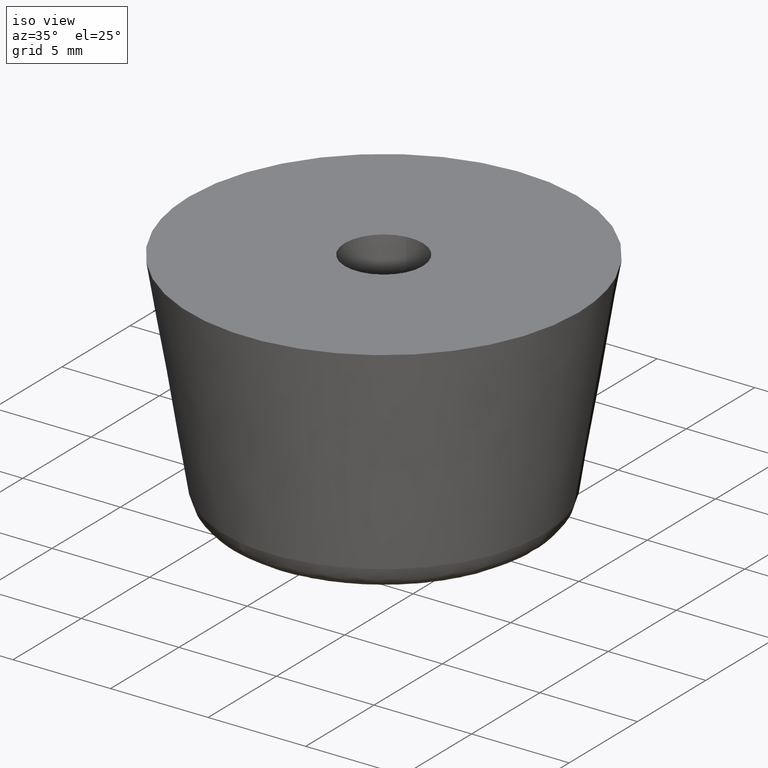
[diagram: clean part render]
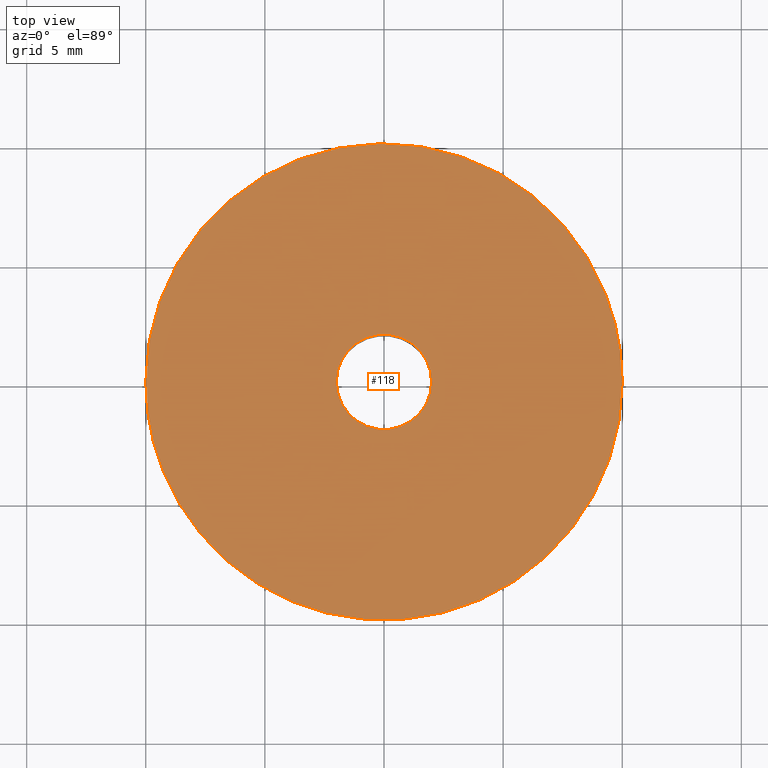
[diagram: tour spotlight — one face highlighted and labeled with its STEP entity id]
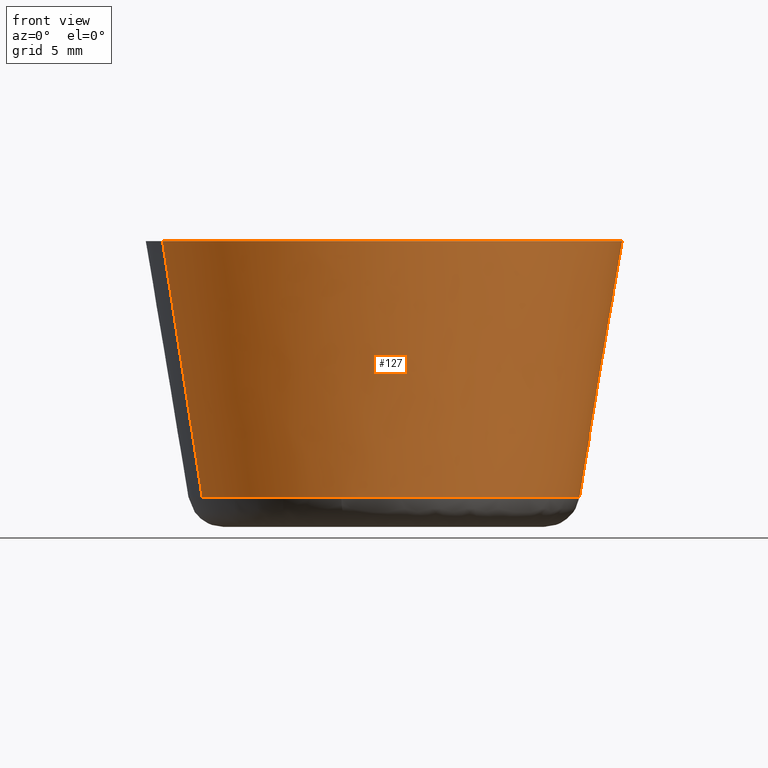
[diagram: tour spotlight — one face highlighted and labeled with its STEP entity id]
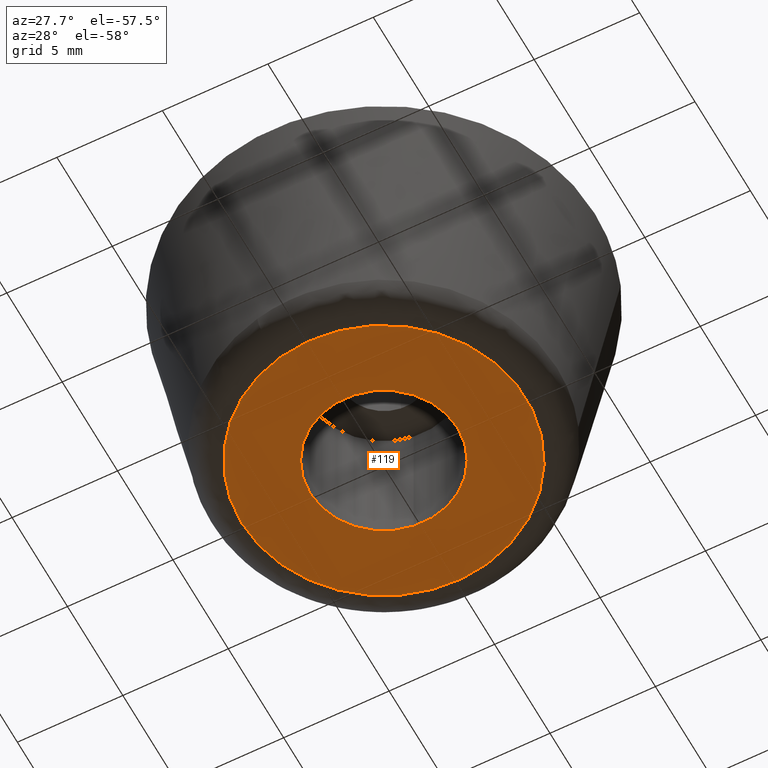
[diagram: tour spotlight — one face highlighted and labeled with its STEP entity id]
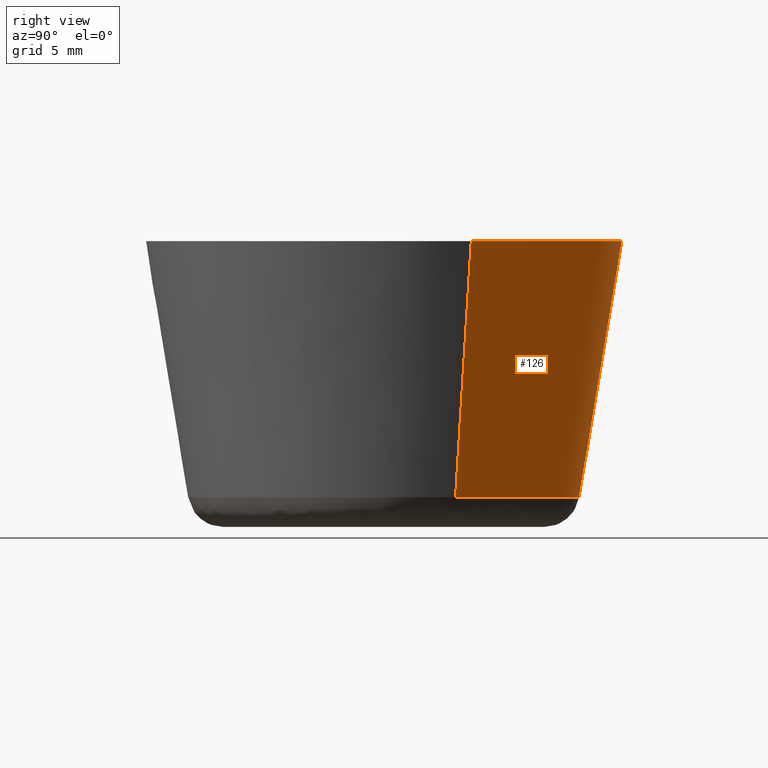
[diagram: tour spotlight — one face highlighted and labeled with its STEP entity id]
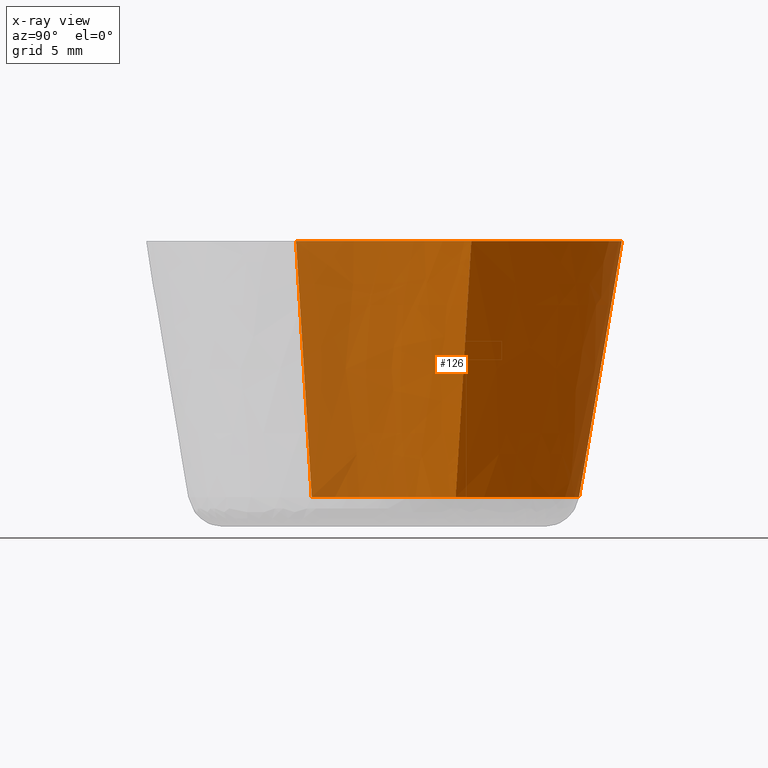
[diagram: x-ray of the same camera — body ghosted, this tour face saturated]
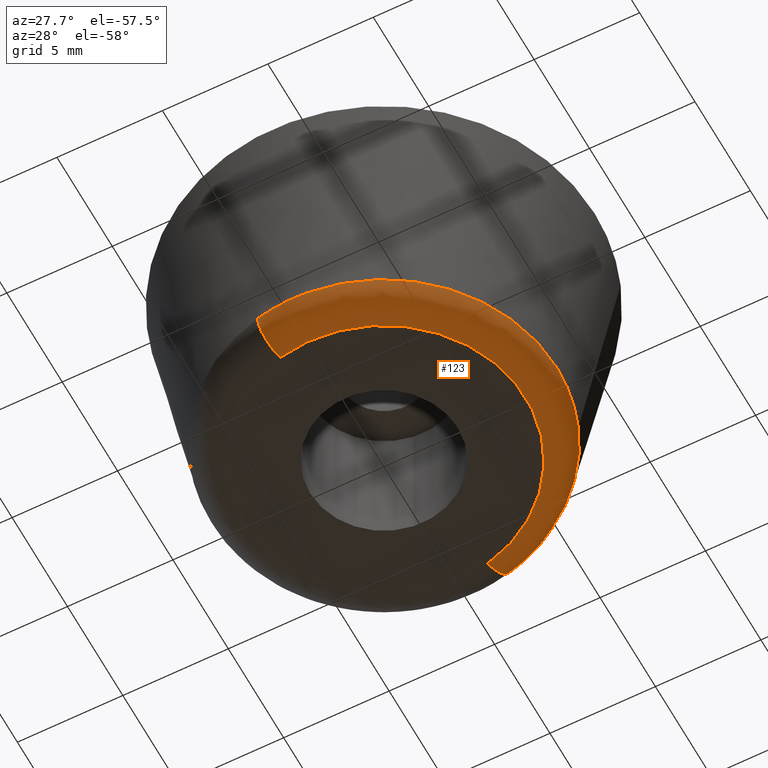
[diagram: tour spotlight — one face highlighted and labeled with its STEP entity id]
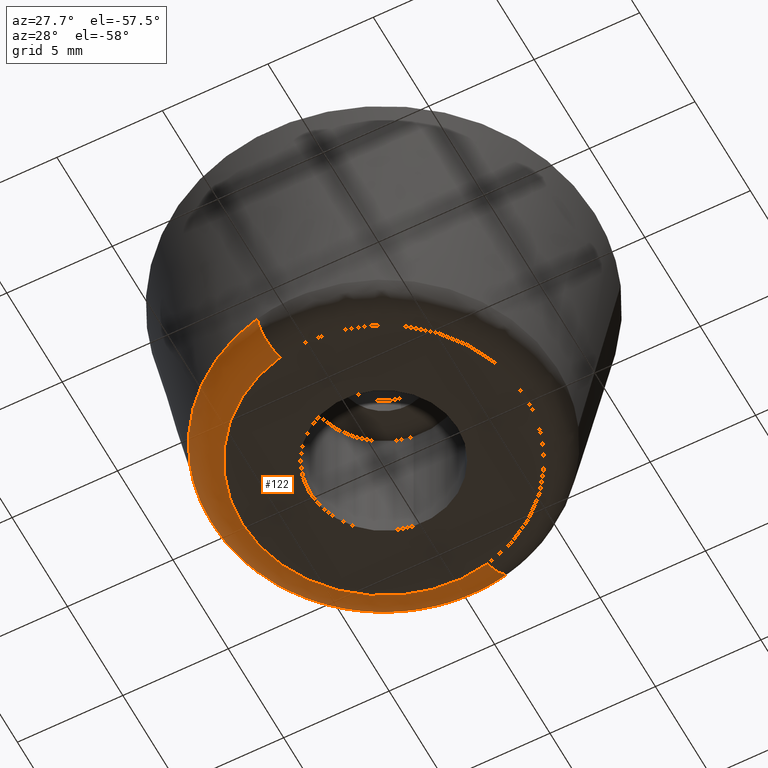
[diagram: tour spotlight — one face highlighted and labeled with its STEP entity id]
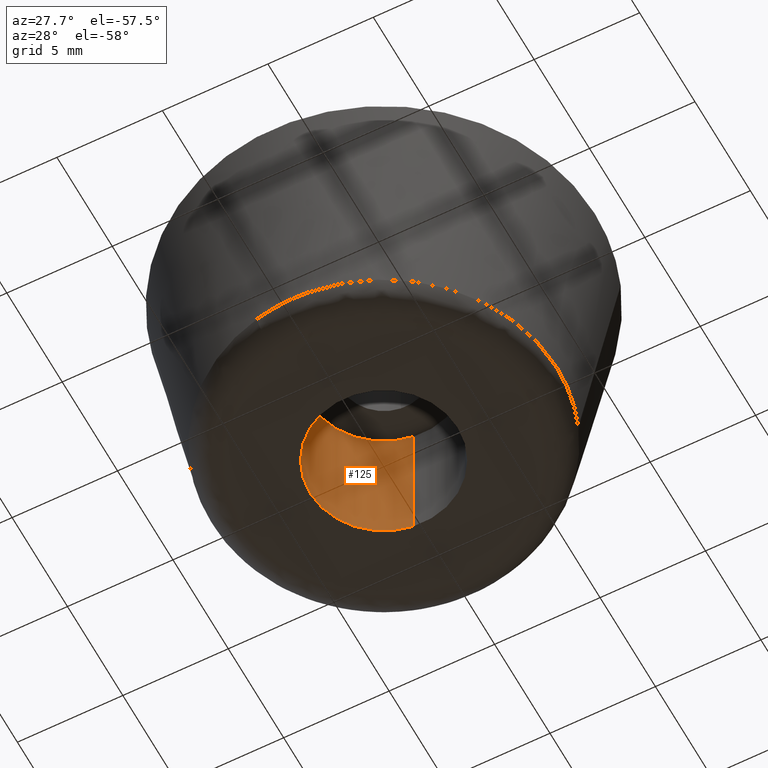
[diagram: tour spotlight — one face highlighted and labeled with its STEP entity id]
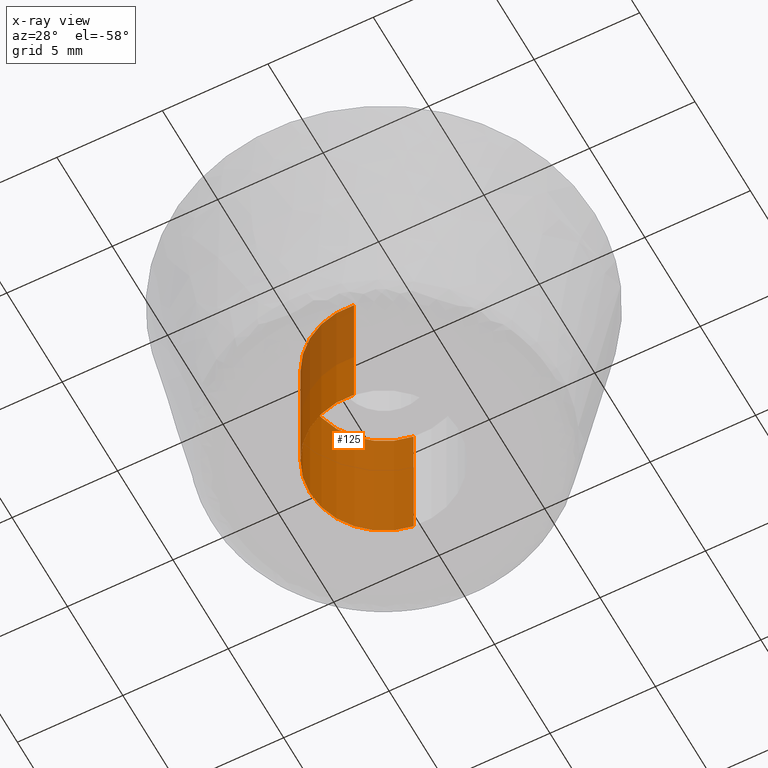
[diagram: x-ray of the same camera — body ghosted, this tour face saturated]
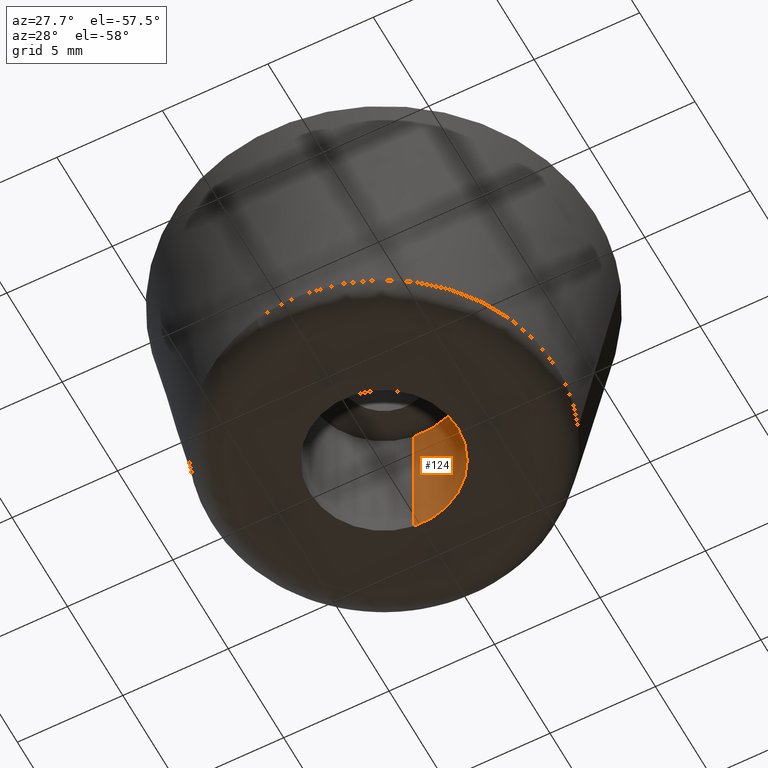
[diagram: tour spotlight — one face highlighted and labeled with its STEP entity id]
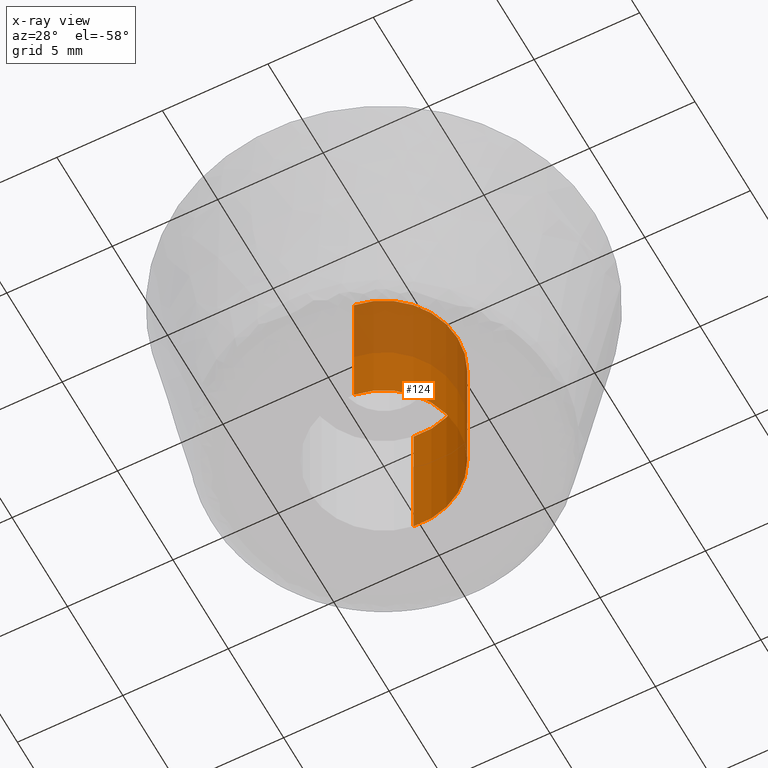
[diagram: x-ray of the same camera — body ghosted, this tour face saturated]
A machine part: a face-by-face anatomy tour. The part has 20 B-rep faces; the first image is the clean iso view, then the 8 largest visible faces are spotlighted one at a time (largest first), each with its STEP entity span.

Face 1 — top view, entity #118. In plain terms, the highlighted planar face has unit normal (0, 0, -1).
Definition (entity closure, byte-faithful):
#118=ADVANCED_FACE('',(#195,#196),#194,.F.);
#194=PLANE('',#373);
#195=FACE_OUTER_BOUND('',#374,.T.);
#196=FACE_BOUND('',#375,.T.);
#370=CARTESIAN_POINT('',(1.20000000000E+001,-1.26037041083E+001,1.20000000000E+001));
#371=DIRECTION('',(0.00000000000E+000,0.00000000000E+000,-1.00000000000E+000));
#372=DIRECTION('',(-1.00000000000E+000,0.00000000000E+000,0.00000000000E+000));
#373=AXIS2_PLACEMENT_3D('',#370,#371,#372);
#374=EDGE_LOOP('',(#530,#531,#532,#533,#534));
#375=EDGE_LOOP('',(#535,#536,#537));
#530=ORIENTED_EDGE('',*,*,#634,.F.);
#531=ORIENTED_EDGE('',*,*,#635,.F.);
#532=ORIENTED_EDGE('',*,*,#636,.F.);
#533=ORIENTED_EDGE('',*,*,#637,.F.);
#534=ORIENTED_EDGE('',*,*,#638,.F.);
#535=ORIENTED_EDGE('',*,*,#639,.T.);
#536=ORIENTED_EDGE('',*,*,#640,.T.);
#537=ORIENTED_EDGE('',*,*,#641,.T.);
#634=EDGE_CURVE('',#786,#787,#788,.T.);
#635=EDGE_CURVE('',#794,#786,#795,.T.);
#636=EDGE_CURVE('',#801,#794,#802,.T.);
#637=EDGE_CURVE('',#808,#801,#809,.T.);
#638=EDGE_CURVE('',#787,#808,#815,.T.);
#639=EDGE_CURVE('',#821,#822,#823,.T.);
#640=EDGE_CURVE('',#822,#829,#830,.T.);
#641=EDGE_CURVE('',#829,#821,#836,.T.);
#786=VERTEX_POINT('',#1152);
#787=VERTEX_POINT('',#1153);
#788=CIRCLE('',#1157,9.99999953654E+000);
#794=VERTEX_POINT('',#1158);
#795=CIRCLE('',#1162,9.99999920340E+000);
#801=VERTEX_POINT('',#1163);
#802=CIRCLE('',#1167,9.99999963346E+000);
#808=VERTEX_POINT('',#1168);
#809=CIRCLE('',#1172,1.00000000000E+001);
#815=CIRCLE('',#1176,1.00000000000E+001);
#821=VERTEX_POINT('',#1177);
#822=VERTEX_POINT('',#1178);
#823=CIRCLE('',#1182,2.00000000000E+000);
#829=VERTEX_POINT('',#1183);
#830=CIRCLE('',#1187,2.00000000000E+000);
#836=CIRCLE('',#1191,2.00000000000E+000);
#1152=CARTESIAN_POINT('',(-9.29864506879E+000,-3.67902034029E+000,1.19999972339E+001));
#1153=CARTESIAN_POINT('',(-1.00000000000E+001,0.00000000000E+000,1.20000000000E+001));
#1154=CARTESIAN_POINT('',(-4.63459734590E-007,1.16476107870E-006,1.19999986169E+001));
#1155=DIRECTION('',(-1.38306706552E-007,7.25500649923E-007,-1.00000000000E+000));
#1156=DIRECTION('',(9.29864503628E-001,3.67902167556E-001,1.38306764634E-007));
#1157=AXIS2_PLACEMENT_3D('',#1154,#1155,#1156);
#1158=CARTESIAN_POINT('',(7.84585191233E-001,-9.96917336829E+000,1.19999974708E+001));
#1159=CARTESIAN_POINT('',(-2.05630419359E-007,-3.92415159034E-007,1.19999973523E+001));
#1160=DIRECTION('',(1.69174532927E-008,-1.05535001726E-008,-1.00000000000E+000));
#1161=DIRECTION('',(-7.84585459364E-002,9.96917377002E-001,-1.18482864965E-008));
#1162=AXIS2_PLACEMENT_3D('',#1159,#1160,#1161);
#1163=CARTESIAN_POINT('',(1.00000000000E+001,0.00000000000E+000,1.20000000000E+001));
#1164=CARTESIAN_POINT('',(3.66538460028E-007,8.40082678977E-008,1.19999987354E+001));
#1165=DIRECTION('',(1.26458405447E-007,1.36801853206E-007,-1.00000000000E+000));
#1166=DIRECTION('',(-1.00000000000E+000,8.40082709769E-009,-1.26458404298E-007));
#1167=AXIS2_PLACEMENT_3D('',#1164,#1165,#1166);
#1168=CARTESIAN_POINT('',(9.29864367598E+000,3.67902511368E+000,1.20000000000E+001));
#1169=CARTESIAN_POINT('',(0.00000000000E+000,0.00000000000E+000,1.20000000000E+001));
#1170=DIRECTION('',(0.00000000000E+000,6.28036983474E-017,-1.00000000000E+000));
#1171=DIRECTION('',(1.00000000000E+000,-0.00000000000E+000,-0.00000000000E+000));
#1172=AXIS2_PLACEMENT_3D('',#1169,#1170,#1171);
#1173=CARTESIAN_POINT('',(0.00000000000E+000,0.00000000000E+000,1.20000000000E+001));
#1174=DIRECTION('',(0.00000000000E+000,6.28036983474E-017,-1.00000000000E+000));
#1175=DIRECTION('',(1.00000000000E+000,-0.00000000000E+000,-0.00000000000E+000));
#1176=AXIS2_PLACEMENT_3D('',#1173,#1174,#1175);
#1177=CARTESIAN_POINT('',(-2.00000000000E+000,1.66533453694E-016,1.20000000000E+001));
#1178=CARTESIAN_POINT('',(-2.36411791321E-001,1.98597821361E+000,1.20000000000E+001));
#1179=CARTESIAN_POINT('',(8.88178419700E-016,6.66133814775E-016,1.20000000000E+001));
#1180=DIRECTION('',(7.28591463049E-014,1.22381376299E-014,-1.00000000000E+000));
#1181=DIRECTION('',(-1.00000000000E+000,9.71445146547E-017,-7.28591463049E-014));
#1182=AXIS2_PLACEMENT_3D('',#1179,#1180,#1181);
#1183=CARTESIAN_POINT('',(2.36067743038E-001,-1.98601913906E+000,1.20000000000E+001));
#1184=CARTESIAN_POINT('',(8.88178419700E-016,6.66133814775E-016,1.20000000000E+001));
#1185=DIRECTION('',(7.28591463049E-014,1.22381376299E-014,-1.00000000000E+000));
#1186=DIRECTION('',(-1.00000000000E+000,9.71445146547E-017,-7.28591463049E-014));
#1187=AXIS2_PLACEMENT_3D('',#1184,#1185,#1186);
#1188=CARTESIAN_POINT('',(8.88178419700E-016,6.66133814775E-016,1.20000000000E+001));
#1189=DIRECTION('',(7.28591463049E-014,1.22381376299E-014,-1.00000000000E+000));
#1190=DIRECTION('',(-1.00000000000E+000,9.71445146547E-017,-7.28591463049E-014));
#1191=AXIS2_PLACEMENT_3D('',#1188,#1189,#1190);

Face 2 — front view, entity #127. In plain terms, the highlighted face is a freeform B-spline surface patch.
Definition (entity closure, byte-faithful):
#127=ADVANCED_FACE('',(#289),#288,.T.);
#288=( BOUNDED_SURFACE() B_SPLINE_SURFACE( 2,1,((#467,#468),(#469,#470),(#471,#472),(#473,#474),(#475,#476)), .UNSPECIFIED.,.F.,.F.,.F.) B_SPLINE_SURFACE_WITH_KNOTS((3,2,3),(2,2),(0.00000000000E+000,5.00000000000E-001,1.00000000000E+000),(0.00000000000E+000,1.00000000000E+000), .UNSPECIFIED. ) GEOMETRIC_REPRESENTATION_ITEM() RATIONAL_B_SPLINE_SURFACE(((1.00000000000E+000,1.00000000000E+000),(7.07106781187E-001,7.07106781187E-001),(1.00000000000E+000,1.00000000000E+000),(7.07106781187E-001,7.07106781187E-001),(1.00000000000E+000,1.00000000000E+000))) REPRESENTATION_ITEM('') SURFACE() );
#289=FACE_OUTER_BOUND('',#477,.T.);
#467=CARTESIAN_POINT('',(-7.63316378520E+000,-3.02007374398E+000,1.25339938496E+000));
#468=CARTESIAN_POINT('',(-9.29875216470E+000,-3.67906651221E+000,1.20006966625E+001));
#469=CARTESIAN_POINT('',(-4.61309004122E+000,-1.06532375292E+001,1.25339938496E+000));
#470=CARTESIAN_POINT('',(-5.61968565249E+000,-1.29778186769E+001,1.20006966625E+001));
#471=CARTESIAN_POINT('',(3.02007374398E+000,-7.63316378520E+000,1.25339938496E+000));
#472=CARTESIAN_POINT('',(3.67906651221E+000,-9.29875216470E+000,1.20006966625E+001));
#473=CARTESIAN_POINT('',(1.06532375292E+001,-4.61309004122E+000,1.25339938496E+000));
#474=CARTESIAN_POINT('',(1.29778186769E+001,-5.61968565249E+000,1.20006966625E+001));
#475=CARTESIAN_POINT('',(7.63316378520E+000,3.02007374398E+000,1.25339938496E+000));
#476=CARTESIAN_POINT('',(9.29875216470E+000,3.67906651221E+000,1.20006966625E+001));
#477=EDGE_LOOP('',(#589,#590,#591,#592,#593,#594,#595,#596,#597));
#589=ORIENTED_EDGE('',*,*,#661,.F.);
#590=ORIENTED_EDGE('',*,*,#669,.F.);
#591=ORIENTED_EDGE('',*,*,#668,.F.);
#592=ORIENTED_EDGE('',*,*,#667,.F.);
#593=ORIENTED_EDGE('',*,*,#672,.T.);
#594=ORIENTED_EDGE('',*,*,#637,.T.);
#595=ORIENTED_EDGE('',*,*,#636,.T.);
#596=ORIENTED_EDGE('',*,*,#635,.T.);
#597=ORIENTED_EDGE('',*,*,#673,.F.);
#635=EDGE_CURVE('',#794,#786,#795,.T.);
#636=EDGE_CURVE('',#801,#794,#802,.T.);
#637=EDGE_CURVE('',#808,#801,#809,.T.);
#661=EDGE_CURVE('',#968,#975,#976,.T.);
#667=EDGE_CURVE('',#1009,#1016,#1017,.T.);
#668=EDGE_CURVE('',#1016,#1023,#1024,.T.);
#669=EDGE_CURVE('',#1023,#968,#1030,.T.);
#672=EDGE_CURVE('',#1009,#808,#1048,.T.);
#673=EDGE_CURVE('',#975,#786,#1054,.T.);
#786=VERTEX_POINT('',#1152);
#794=VERTEX_POINT('',#1158);
#795=CIRCLE('',#1162,9.99999920340E+000);
#801=VERTEX_POINT('',#1163);
#802=CIRCLE('',#1167,9.99999963346E+000);
#808=VERTEX_POINT('',#1168);
#809=CIRCLE('',#1172,1.00000000000E+001);
#968=VERTEX_POINT('',#1282);
#975=VERTEX_POINT('',#1286);
#976=CIRCLE('',#1290,8.20889964296E+000);
#1009=VERTEX_POINT('',#1311);
#1016=VERTEX_POINT('',#1316);
#1017=CIRCLE('',#1320,8.20889985358E+000);
#1023=VERTEX_POINT('',#1321);
#1024=CIRCLE('',#1325,8.20889983840E+000);
#1030=CIRCLE('',#1329,8.20889964296E+000);
#1048=(BOUNDED_CURVE() B_SPLINE_CURVE(1,(#1334,#1335),.UNSPECIFIED.,.F.,.F.) B_SPLINE_CURVE_WITH_KNOTS((2,2),(1.51992844174E-007,9.99935176977E-001),.UNSPECIFIED.) CURVE() GEOMETRIC_REPRESENTATION_ITEM() RATIONAL_B_SPLINE_CURVE((1.00000000000E+000,1.00000000000E+000)) REPRESENTATION_ITEM('') );
#1054=(BOUNDED_CURVE() B_SPLINE_CURVE(1,(#1336,#1337),.UNSPECIFIED.,.F.,.F.) B_SPLINE_CURVE_WITH_KNOTS((2,2),(0.00000000000E+000,1.00000000000E+000),.UNSPECIFIED.) CURVE() GEOMETRIC_REPRESENTATION_ITEM() RATIONAL_B_SPLINE_CURVE((7.50000000000E-001,7.50000000000E-001)) REPRESENTATION_ITEM('') );
#1152=CARTESIAN_POINT('',(-9.29864506879E+000,-3.67902034029E+000,1.19999972339E+001));
#1158=CARTESIAN_POINT('',(7.84585191233E-001,-9.96917336829E+000,1.19999974708E+001));
#1159=CARTESIAN_POINT('',(-2.05630419359E-007,-3.92415159034E-007,1.19999973523E+001));
#1160=DIRECTION('',(1.69174532927E-008,-1.05535001726E-008,-1.00000000000E+000));
#1161=DIRECTION('',(-7.84585459364E-002,9.96917377002E-001,-1.18482864965E-008));
#1162=AXIS2_PLACEMENT_3D('',#1159,#1160,#1161);
#1163=CARTESIAN_POINT('',(1.00000000000E+001,0.00000000000E+000,1.20000000000E+001));
#1164=CARTESIAN_POINT('',(3.66538460028E-007,8.40082678977E-008,1.19999987354E+001));
#1165=DIRECTION('',(1.26458405447E-007,1.36801853206E-007,-1.00000000000E+000));
#1166=DIRECTION('',(-1.00000000000E+000,8.40082709769E-009,-1.26458404298E-007));
#1167=AXIS2_PLACEMENT_3D('',#1164,#1165,#1166);
#1168=CARTESIAN_POINT('',(9.29864367598E+000,3.67902511368E+000,1.20000000000E+001));
#1169=CARTESIAN_POINT('',(0.00000000000E+000,0.00000000000E+000,1.20000000000E+001));
#1170=DIRECTION('',(0.00000000000E+000,6.28036983474E-017,-1.00000000000E+000));
#1171=DIRECTION('',(1.00000000000E+000,-0.00000000000E+000,-0.00000000000E+000));
#1172=AXIS2_PLACEMENT_3D('',#1169,#1170,#1171);
#1282=CARTESIAN_POINT('',(-1.79612200113E+000,-8.00999268732E+000,1.25340006010E+000));
#1286=CARTESIAN_POINT('',(-7.63316455966E+000,-3.02007178655E+000,1.25339938496E+000));
#1287=CARTESIAN_POINT('',(-2.18296891674E-009,-2.33325481602E-007,1.25339981865E+000));
#1288=DIRECTION('',(7.54355473177E-008,-4.70584214946E-008,-1.00000000000E+000));
#1289=DIRECTION('',(-7.84588828852E-002,9.96917350484E-001,-5.28319456468E-008));
#1290=AXIS2_PLACEMENT_3D('',#1287,#1288,#1289);
#1311=CARTESIAN_POINT('',(7.63316311260E+000,3.02007616482E+000,1.25340100146E+000));
#1316=CARTESIAN_POINT('',(8.20890000000E+000,0.00000000000E+000,1.25340100000E+000));
#1317=CARTESIAN_POINT('',(1.46421949232E-007,1.71315024389E-008,1.25340102082E+000));
#1318=DIRECTION('',(-2.53674241996E-009,-1.02401758128E-016,-1.00000000000E+000));
#1319=DIRECTION('',(-2.18801775338E-001,-9.75769328842E-001,5.55043844984E-010));
#1320=AXIS2_PLACEMENT_3D('',#1317,#1318,#1319);
#1321=CARTESIAN_POINT('',(6.44061093520E-001,-8.18359471577E+000,1.25340025234E+000));
#1322=CARTESIAN_POINT('',(1.61597301762E-007,-2.43839766156E-008,1.25340018869E+000));
#1323=DIRECTION('',(9.88331666187E-008,9.56336988829E-018,-1.00000000000E+000));
#1324=DIRECTION('',(-1.00000000000E+000,-2.97043173819E-009,-9.88331666187E-008));
#1325=AXIS2_PLACEMENT_3D('',#1322,#1323,#1324);
#1326=CARTESIAN_POINT('',(-2.18296891674E-009,-2.33325481602E-007,1.25339981865E+000));
#1327=DIRECTION('',(7.54355473177E-008,-4.70584214946E-008,-1.00000000000E+000));
#1328=DIRECTION('',(-7.84588828852E-002,9.96917350484E-001,-5.28319456468E-008));
#1329=AXIS2_PLACEMENT_3D('',#1326,#1327,#1328);
#1334=CARTESIAN_POINT('',(7.63316378520E+000,3.02007374398E+000,1.25339938496E+000));
#1335=CARTESIAN_POINT('',(9.29864419621E+000,3.67902379430E+000,1.19999999901E+001));
#1336=CARTESIAN_POINT('',(-7.63316378520E+000,-3.02007374398E+000,1.25339938496E+000));
#1337=CARTESIAN_POINT('',(-9.29875216470E+000,-3.67906651221E+000,1.20006966625E+001));

Face 3 — auxiliary view, entity #119. In plain terms, the highlighted planar face has unit normal (0, 0, 1).
Definition (entity closure, byte-faithful):
#119=ADVANCED_FACE('',(#206,#207),#205,.F.);
#205=PLANE('',#379);
#206=FACE_OUTER_BOUND('',#380,.T.);
#207=FACE_BOUND('',#381,.T.);
#376=CARTESIAN_POINT('',(-8.74810170046E+000,-1.39866061058E+001,0.00000000000E+000));
#377=DIRECTION('',(0.00000000000E+000,0.00000000000E+000,1.00000000000E+000));
#378=DIRECTION('',(1.00000000000E+000,0.00000000000E+000,0.00000000000E+000));
#379=AXIS2_PLACEMENT_3D('',#376,#377,#378);
#380=EDGE_LOOP('',(#538,#539,#540));
#381=EDGE_LOOP('',(#541,#542,#543));
#538=ORIENTED_EDGE('',*,*,#642,.T.);
#539=ORIENTED_EDGE('',*,*,#643,.T.);
#540=ORIENTED_EDGE('',*,*,#644,.T.);
#541=ORIENTED_EDGE('',*,*,#645,.F.);
#542=ORIENTED_EDGE('',*,*,#646,.F.);
#543=ORIENTED_EDGE('',*,*,#647,.F.);
#642=EDGE_CURVE('',#842,#843,#844,.T.);
#643=EDGE_CURVE('',#843,#850,#851,.T.);
#644=EDGE_CURVE('',#850,#842,#857,.T.);
#645=EDGE_CURVE('',#863,#864,#865,.T.);
#646=EDGE_CURVE('',#871,#863,#872,.T.);
#647=EDGE_CURVE('',#864,#871,#878,.T.);
#842=VERTEX_POINT('',#1192);
#843=VERTEX_POINT('',#1193);
#844=CIRCLE('',#1197,6.72930900018E+000);
#850=VERTEX_POINT('',#1198);
#851=CIRCLE('',#1202,6.72930900018E+000);
#857=CIRCLE('',#1206,6.72930900018E+000);
#863=VERTEX_POINT('',#1207);
#864=VERTEX_POINT('',#1208);
#865=CIRCLE('',#1212,3.49999999999E+000);
#871=VERTEX_POINT('',#1213);
#872=CIRCLE('',#1217,3.49999999999E+000);
#878=CIRCLE('',#1221,3.49999999999E+000);
#1192=CARTESIAN_POINT('',(-6.72930900036E+000,8.88178419700E-016,4.89353401016E-016));
#1193=CARTESIAN_POINT('',(1.47239673919E+000,6.56625063955E+000,1.91140568341E-016));
#1194=CARTESIAN_POINT('',(-1.79874781736E-010,-2.68900457456E-011,2.44676700508E-016));
#1195=DIRECTION('',(-3.63598551503E-017,5.19170013290E-033,-1.00000000000E+000));
#1196=DIRECTION('',(-1.00000000000E+000,3.99641431059E-012,3.63598551503E-017));
#1197=AXIS2_PLACEMENT_3D('',#1194,#1195,#1196);
#1198=CARTESIAN_POINT('',(-1.47238486734E+000,-6.56625330179E+000,2.98212401003E-016));
#1199=CARTESIAN_POINT('',(-1.79874781736E-010,-2.68900457456E-011,2.44676700508E-016));
#1200=DIRECTION('',(-3.63598551503E-017,5.19170013290E-033,-1.00000000000E+000));
#1201=DIRECTION('',(-1.00000000000E+000,3.99641431059E-012,3.63598551503E-017));
#1202=AXIS2_PLACEMENT_3D('',#1199,#1200,#1201);
#1203=CARTESIAN_POINT('',(-1.79874781736E-010,-2.68900457456E-011,2.44676700508E-016));
#1204=DIRECTION('',(-3.63598551503E-017,5.19170013290E-033,-1.00000000000E+000));
#1205=DIRECTION('',(-1.00000000000E+000,3.99641431059E-012,3.63598551503E-017));
#1206=AXIS2_PLACEMENT_3D('',#1203,#1204,#1205);
#1207=CARTESIAN_POINT('',(4.13118550315E-001,-3.47553349334E+000,-5.07009464388E-014));
#1208=CARTESIAN_POINT('',(-3.49999999998E+000,7.77156117238E-016,-4.61684234331E-013));
#1209=CARTESIAN_POINT('',(7.59614593449E-012,3.45123929435E-012,-3.80288040957E-014));
#1210=DIRECTION('',(1.21044408639E-013,1.80340178228E-014,-1.00000000000E+000));
#1211=DIRECTION('',(-1.00000000000E+000,-9.85489467809E-013,-1.21044408639E-013));
#1212=AXIS2_PLACEMENT_3D('',#1209,#1210,#1211);
#1213=CARTESIAN_POINT('',(-4.13720514207E-001,3.47546188817E+000,-2.54308174468E-014));
#1214=CARTESIAN_POINT('',(7.59614593449E-012,3.45123929435E-012,-3.80288040957E-014));
#1215=DIRECTION('',(1.21044408639E-013,1.80340178228E-014,-1.00000000000E+000));
#1216=DIRECTION('',(-1.00000000000E+000,-9.85489467809E-013,-1.21044408639E-013));
#1217=AXIS2_PLACEMENT_3D('',#1214,#1215,#1216);
#1218=CARTESIAN_POINT('',(7.59614593449E-012,3.45123929435E-012,-3.80288040957E-014));
#1219=DIRECTION('',(1.21044408639E-013,1.80340178228E-014,-1.00000000000E+000));
#1220=DIRECTION('',(-1.00000000000E+000,-9.85489467809E-013,-1.21044408639E-013));
#1221=AXIS2_PLACEMENT_3D('',#1218,#1219,#1220);

Face 4 — right view, entity #126. An x-ray twin of the same camera follows (body ghosted, this face saturated) — the face is partly hidden behind the body. In plain terms, the highlighted face is a freeform B-spline surface patch.
Definition (entity closure, byte-faithful):
#126=ADVANCED_FACE('',(#279),#278,.T.);
#278=( BOUNDED_SURFACE() B_SPLINE_SURFACE( 2,1,((#456,#457),(#458,#459),(#460,#461),(#462,#463),(#464,#465)), .UNSPECIFIED.,.F.,.F.,.F.) B_SPLINE_SURFACE_WITH_KNOTS((3,2,3),(2,2),(0.00000000000E+000,5.00000000000E-001,1.00000000000E+000),(0.00000000000E+000,1.00000000000E+000), .UNSPECIFIED. ) GEOMETRIC_REPRESENTATION_ITEM() RATIONAL_B_SPLINE_SURFACE(((1.00000000000E+000,1.00000000000E+000),(7.07106781187E-001,7.07106781187E-001),(1.00000000000E+000,1.00000000000E+000),(7.07106781187E-001,7.07106781187E-001),(1.00000000000E+000,1.00000000000E+000))) REPRESENTATION_ITEM('') SURFACE() );
#279=FACE_OUTER_BOUND('',#466,.T.);
#456=CARTESIAN_POINT('',(7.63316378520E+000,3.02007374398E+000,1.25339938496E+000));
#457=CARTESIAN_POINT('',(9.29875216470E+000,3.67906651221E+000,1.20006966625E+001));
#458=CARTESIAN_POINT('',(4.61309004122E+000,1.06532375292E+001,1.25339938496E+000));
#459=CARTESIAN_POINT('',(5.61968565249E+000,1.29778186769E+001,1.20006966625E+001));
#460=CARTESIAN_POINT('',(-3.02007374398E+000,7.63316378520E+000,1.25339938496E+000));
#461=CARTESIAN_POINT('',(-3.67906651221E+000,9.29875216470E+000,1.20006966625E+001));
#462=CARTESIAN_POINT('',(-1.06532375292E+001,4.61309004122E+000,1.25339938496E+000));
#463=CARTESIAN_POINT('',(-1.29778186769E+001,5.61968565249E+000,1.20006966625E+001));
#464=CARTESIAN_POINT('',(-7.63316378520E+000,-3.02007374398E+000,1.25339938496E+000));
#465=CARTESIAN_POINT('',(-9.29875216470E+000,-3.67906651221E+000,1.20006966625E+001));
#466=EDGE_LOOP('',(#581,#582,#583,#584,#585,#586,#587,#588));
#581=ORIENTED_EDGE('',*,*,#634,.T.);
#582=ORIENTED_EDGE('',*,*,#638,.T.);
#583=ORIENTED_EDGE('',*,*,#672,.F.);
#584=ORIENTED_EDGE('',*,*,#666,.F.);
#585=ORIENTED_EDGE('',*,*,#664,.F.);
#586=ORIENTED_EDGE('',*,*,#663,.F.);
#587=ORIENTED_EDGE('',*,*,#662,.F.);
#588=ORIENTED_EDGE('',*,*,#673,.T.);
#634=EDGE_CURVE('',#786,#787,#788,.T.);
#638=EDGE_CURVE('',#787,#808,#815,.T.);
#662=EDGE_CURVE('',#975,#982,#983,.T.);
#663=EDGE_CURVE('',#982,#989,#990,.T.);
#664=EDGE_CURVE('',#989,#996,#997,.T.);
#666=EDGE_CURVE('',#996,#1009,#1010,.T.);
#672=EDGE_CURVE('',#1009,#808,#1048,.T.);
#673=EDGE_CURVE('',#975,#786,#1054,.T.);
#786=VERTEX_POINT('',#1152);
#787=VERTEX_POINT('',#1153);
#788=CIRCLE('',#1157,9.99999953654E+000);
#808=VERTEX_POINT('',#1168);
#815=CIRCLE('',#1176,1.00000000000E+001);
#975=VERTEX_POINT('',#1286);
#982=VERTEX_POINT('',#1291);
#983=CIRCLE('',#1295,8.20889972940E+000);
#989=VERTEX_POINT('',#1296);
#990=CIRCLE('',#1300,8.20889263988E+000);
#996=VERTEX_POINT('',#1301);
#997=CIRCLE('',#1305,8.20889971517E+000);
#1009=VERTEX_POINT('',#1311);
#1010=CIRCLE('',#1315,8.20889985358E+000);
#1048=(BOUNDED_CURVE() B_SPLINE_CURVE(1,(#1334,#1335),.UNSPECIFIED.,.F.,.F.) B_SPLINE_CURVE_WITH_KNOTS((2,2),(1.51992844174E-007,9.99935176977E-001),.UNSPECIFIED.) CURVE() GEOMETRIC_REPRESENTATION_ITEM() RATIONAL_B_SPLINE_CURVE((1.00000000000E+000,1.00000000000E+000)) REPRESENTATION_ITEM('') );
#1054=(BOUNDED_CURVE() B_SPLINE_CURVE(1,(#1336,#1337),.UNSPECIFIED.,.F.,.F.) B_SPLINE_CURVE_WITH_KNOTS((2,2),(0.00000000000E+000,1.00000000000E+000),.UNSPECIFIED.) CURVE() GEOMETRIC_REPRESENTATION_ITEM() RATIONAL_B_SPLINE_CURVE((7.50000000000E-001,7.50000000000E-001)) REPRESENTATION_ITEM('') );
#1152=CARTESIAN_POINT('',(-9.29864506879E+000,-3.67902034029E+000,1.19999972339E+001));
#1153=CARTESIAN_POINT('',(-1.00000000000E+001,0.00000000000E+000,1.20000000000E+001));
#1154=CARTESIAN_POINT('',(-4.63459734590E-007,1.16476107870E-006,1.19999986169E+001));
#1155=DIRECTION('',(-1.38306706552E-007,7.25500649923E-007,-1.00000000000E+000));
#1156=DIRECTION('',(9.29864503628E-001,3.67902167556E-001,1.38306764634E-007));
#1157=AXIS2_PLACEMENT_3D('',#1154,#1155,#1156);
#1168=CARTESIAN_POINT('',(9.29864367598E+000,3.67902511368E+000,1.20000000000E+001));
#1173=CARTESIAN_POINT('',(0.00000000000E+000,0.00000000000E+000,1.20000000000E+001));
#1174=DIRECTION('',(0.00000000000E+000,6.28036983474E-017,-1.00000000000E+000));
#1175=DIRECTION('',(1.00000000000E+000,-0.00000000000E+000,-0.00000000000E+000));
#1176=AXIS2_PLACEMENT_3D('',#1173,#1174,#1175);
#1286=CARTESIAN_POINT('',(-7.63316455966E+000,-3.02007178655E+000,1.25339938496E+000));
#1291=CARTESIAN_POINT('',(-8.20890000000E+000,0.00000000000E+000,1.25340100000E+000));
#1292=CARTESIAN_POINT('',(-2.70597243279E-007,6.80059585090E-007,1.25340019248E+000));
#1293=DIRECTION('',(-9.83713612663E-008,5.16016012225E-007,-1.00000000000E+000));
#1294=DIRECTION('',(9.29864481317E-001,3.67902223947E-001,9.83714036698E-008));
#1295=AXIS2_PLACEMENT_3D('',#1292,#1293,#1294);
#1296=CARTESIAN_POINT('',(-8.09960615104E+000,1.33507220949E+000,1.25340101627E+000));
#1297=CARTESIAN_POINT('',(-7.36011855729E-006,1.99669625278E-009,1.25340222174E+000));
#1298=DIRECTION('',(1.48831199119E-007,1.53013653474E-016,-1.00000000000E+000));
#1299=DIRECTION('',(1.00000000000E+000,2.43235761555E-010,1.48831199119E-007));
#1300=AXIS2_PLACEMENT_3D('',#1297,#1298,#1299);
#1301=CARTESIAN_POINT('',(1.79612200796E+000,8.00999271779E+000,1.25340101627E+000));
#1302=CARTESIAN_POINT('',(-1.52436617107E-007,2.25991157343E-007,1.25340104521E+000));
#1303=DIRECTION('',(3.09976306080E-009,-2.87735531608E-009,-1.00000000000E+000));
#1304=DIRECTION('',(9.86685948134E-001,-1.62637141373E-001,3.52645749796E-009));
#1305=AXIS2_PLACEMENT_3D('',#1302,#1303,#1304);
#1311=CARTESIAN_POINT('',(7.63316311260E+000,3.02007616482E+000,1.25340100146E+000));
#1312=CARTESIAN_POINT('',(1.46421949232E-007,1.71315024389E-008,1.25340102082E+000));
#1313=DIRECTION('',(-2.53674241996E-009,-1.02401758128E-016,-1.00000000000E+000));
#1314=DIRECTION('',(-2.18801775338E-001,-9.75769328842E-001,5.55043844984E-010));
#1315=AXIS2_PLACEMENT_3D('',#1312,#1313,#1314);
#1334=CARTESIAN_POINT('',(7.63316378520E+000,3.02007374398E+000,1.25339938496E+000));
#1335=CARTESIAN_POINT('',(9.29864419621E+000,3.67902379430E+000,1.19999999901E+001));
#1336=CARTESIAN_POINT('',(-7.63316378520E+000,-3.02007374398E+000,1.25339938496E+000));
#1337=CARTESIAN_POINT('',(-9.29875216470E+000,-3.67906651221E+000,1.20006966625E+001));

Face 5 — auxiliary view, entity #123. In plain terms, the highlighted face is a freeform B-spline surface patch.
Definition (entity closure, byte-faithful):
#123=ADVANCED_FACE('',(#249),#248,.T.);
#248=( BOUNDED_SURFACE() B_SPLINE_SURFACE( 2,2,((#420,#421,#422,#423,#424),(#425,#426,#427,#428,#429),(#430,#431,#432,#433,#434),(#435,#436,#437,#438,#439),(#440,#441,#442,#443,#444)), .UNSPECIFIED.,.F.,.F.,.F.) B_SPLINE_SURFACE_WITH_KNOTS((3,2,3),(3,2,3),(0.00000000000E+000,5.00000000000E-001,1.00000000000E+000),(0.00000000000E+000,5.00000000000E-001,1.00000000000E+000), .UNSPECIFIED. ) GEOMETRIC_REPRESENTATION_ITEM() RATIONAL_B_SPLINE_SURFACE(((1.00000000000E+000,7.63020089789E-001,1.00000000000E+000,7.63020089789E-001,1.00000000000E+000),(7.07106781187E-001,5.39536679671E-001,7.07106781187E-001,5.39536679671E-001,7.07106781187E-001),(1.00000000000E+000,7.63020089789E-001,1.00000000000E+000,7.63020089789E-001,1.00000000000E+000),(7.07106781187E-001,5.39536679671E-001,7.07106781187E-001,5.39536679671E-001,7.07106781187E-001),(1.00000000000E+000,7.63020089789E-001,1.00000000000E+000,7.63020089789E-001,1.00000000000E+000))) REPRESENTATION_ITEM('') SURFACE() );
#249=FACE_OUTER_BOUND('',#445,.T.);
#420=CARTESIAN_POINT('',(1.79612198641E+000,8.00999262171E+000,1.25340102773E+000));
#421=CARTESIAN_POINT('',(1.75041416102E+000,7.80615382515E+000,5.82015094744E-016));
#422=CARTESIAN_POINT('',(1.47238486728E+000,6.56625330155E+000,2.22044604925E-016));
#423=CARTESIAN_POINT('',(1.19435557355E+000,5.32635277794E+000,5.82015094744E-016));
#424=CARTESIAN_POINT('',(1.14864774816E+000,5.12251398139E+000,1.25340102773E+000));
#425=CARTESIAN_POINT('',(9.80611460812E+000,6.21387063529E+000,1.25340102773E+000));
#426=CARTESIAN_POINT('',(9.55656798617E+000,6.05573966413E+000,1.70468274498E-016));
#427=CARTESIAN_POINT('',(8.03863816883E+000,5.09386843426E+000,-9.19738868117E-017));
#428=CARTESIAN_POINT('',(6.52070835149E+000,4.13199720439E+000,2.91007547372E-016));
#429=CARTESIAN_POINT('',(6.27116172954E+000,3.97386623323E+000,1.25340102773E+000));
#430=CARTESIAN_POINT('',(8.00999262171E+000,-1.79612198641E+000,1.25340102773E+000));
#431=CARTESIAN_POINT('',(7.80615382515E+000,-1.75041416102E+000,0.00000000000E+000));
#432=CARTESIAN_POINT('',(6.56625330155E+000,-1.47238486728E+000,-4.44089209850E-016));
#433=CARTESIAN_POINT('',(5.32635277794E+000,-1.19435557355E+000,0.00000000000E+000));
#434=CARTESIAN_POINT('',(5.12251398139E+000,-1.14864774816E+000,1.25340102773E+000));
#435=CARTESIAN_POINT('',(6.21387063529E+000,-9.80611460812E+000,1.25340102773E+000));
#436=CARTESIAN_POINT('',(6.05573966413E+000,-9.55656798617E+000,-2.41078545749E-016));
#437=CARTESIAN_POINT('',(5.09386843426E+000,-8.03863816883E+000,-6.28036983474E-016));
#438=CARTESIAN_POINT('',(4.13199720439E+000,-6.52070835149E+000,-1.20539272874E-016));
#439=CARTESIAN_POINT('',(3.97386623323E+000,-6.27116172954E+000,1.25340102773E+000));
#440=CARTESIAN_POINT('',(-1.79612198641E+000,-8.00999262171E+000,1.25340102773E+000));
#441=CARTESIAN_POINT('',(-1.75041416102E+000,-7.80615382515E+000,0.00000000000E+000));
#442=CARTESIAN_POINT('',(-1.47238486728E+000,-6.56625330155E+000,-2.22044604925E-016));
#443=CARTESIAN_POINT('',(-1.19435557355E+000,-5.32635277794E+000,2.91007547372E-016));
#444=CARTESIAN_POINT('',(-1.14864774816E+000,-5.12251398139E+000,1.25340102773E+000));
#445=EDGE_LOOP('',(#564,#565,#566,#567,#568,#569,#570));
#564=ORIENTED_EDGE('',*,*,#666,.T.);
#565=ORIENTED_EDGE('',*,*,#667,.T.);
#566=ORIENTED_EDGE('',*,*,#668,.T.);
#567=ORIENTED_EDGE('',*,*,#669,.T.);
#568=ORIENTED_EDGE('',*,*,#660,.T.);
#569=ORIENTED_EDGE('',*,*,#643,.F.);
#570=ORIENTED_EDGE('',*,*,#665,.F.);
#643=EDGE_CURVE('',#843,#850,#851,.T.);
#660=EDGE_CURVE('',#968,#850,#969,.T.);
#665=EDGE_CURVE('',#996,#843,#1003,.T.);
#666=EDGE_CURVE('',#996,#1009,#1010,.T.);
#667=EDGE_CURVE('',#1009,#1016,#1017,.T.);
#668=EDGE_CURVE('',#1016,#1023,#1024,.T.);
#669=EDGE_CURVE('',#1023,#968,#1030,.T.);
#843=VERTEX_POINT('',#1193);
#850=VERTEX_POINT('',#1198);
#851=CIRCLE('',#1202,6.72930900018E+000);
#968=VERTEX_POINT('',#1282);
#969=(BOUNDED_CURVE() B_SPLINE_CURVE(2,(#1283,#1284,#1285),.UNSPECIFIED.,.F.,.F.) B_SPLINE_CURVE_WITH_KNOTS((3,3),(2.48353686561E-007,5.00000000000E-001),.UNSPECIFIED.) CURVE() GEOMETRIC_REPRESENTATION_ITEM() RATIONAL_B_SPLINE_CURVE((1.00000000000E+000,7.63020089789E-001,1.00000000000E+000)) REPRESENTATION_ITEM('') );
#996=VERTEX_POINT('',#1301);
#1003=(BOUNDED_CURVE() B_SPLINE_CURVE(3,(#1306,#1307,#1308,#1309,#1310),.UNSPECIFIED.,.F.,.F.) B_SPLINE_CURVE_WITH_KNOTS((4,1,4),(0.00000000000E+000,2.50000280113E-001,5.00000499381E-001),.UNSPECIFIED.) CURVE() GEOMETRIC_REPRESENTATION_ITEM() RATIONAL_B_SPLINE_CURVE((1.00000000000E+000,1.00000000000E+000,1.00000000000E+000,1.00000000000E+000,1.00000000000E+000)) REPRESENTATION_ITEM('') );
#1009=VERTEX_POINT('',#1311);
#1010=CIRCLE('',#1315,8.20889985358E+000);
#1016=VERTEX_POINT('',#1316);
#1017=CIRCLE('',#1320,8.20889985358E+000);
#1023=VERTEX_POINT('',#1321);
#1024=CIRCLE('',#1325,8.20889983840E+000);
#1030=CIRCLE('',#1329,8.20889964296E+000);
#1193=CARTESIAN_POINT('',(1.47239673919E+000,6.56625063955E+000,1.91140568341E-016));
#1198=CARTESIAN_POINT('',(-1.47238486734E+000,-6.56625330179E+000,2.98212401003E-016));
#1199=CARTESIAN_POINT('',(-1.79874781736E-010,-2.68900457456E-011,2.44676700508E-016));
#1200=DIRECTION('',(-3.63598551503E-017,5.19170013290E-033,-1.00000000000E+000));
#1201=DIRECTION('',(-1.00000000000E+000,3.99641431059E-012,3.63598551503E-017));
#1202=AXIS2_PLACEMENT_3D('',#1199,#1200,#1201);
#1282=CARTESIAN_POINT('',(-1.79612200113E+000,-8.00999268732E+000,1.25340006010E+000));
#1283=CARTESIAN_POINT('',(-1.79612198641E+000,-8.00999262171E+000,1.25340102773E+000));
#1284=CARTESIAN_POINT('',(-1.75041416102E+000,-7.80615382515E+000,1.45503773686E-015));
#1285=CARTESIAN_POINT('',(-1.47238486728E+000,-6.56625330155E+000,1.77635683940E-015));
#1301=CARTESIAN_POINT('',(1.79612200796E+000,8.00999271779E+000,1.25340101627E+000));
#1306=CARTESIAN_POINT('',(1.79612198641E+000,8.00999262171E+000,1.25340102773E+000));
#1307=CARTESIAN_POINT('',(1.78403321519E+000,7.95608149039E+000,9.08995779599E-001));
#1308=CARTESIAN_POINT('',(1.70268516948E+000,7.59330142820E+000,2.57501680598E-001));
#1309=CARTESIAN_POINT('',(1.54870298533E+000,6.90660187868E+000,-2.12229802022E-003));
#1310=CARTESIAN_POINT('',(1.47238444353E+000,6.56625141175E+000,1.25252072045E-012));
#1311=CARTESIAN_POINT('',(7.63316311260E+000,3.02007616482E+000,1.25340100146E+000));
#1312=CARTESIAN_POINT('',(1.46421949232E-007,1.71315024389E-008,1.25340102082E+000));
#1313=DIRECTION('',(-2.53674241996E-009,-1.02401758128E-016,-1.00000000000E+000));
#1314=DIRECTION('',(-2.18801775338E-001,-9.75769328842E-001,5.55043844984E-010));
#1315=AXIS2_PLACEMENT_3D('',#1312,#1313,#1314);
#1316=CARTESIAN_POINT('',(8.20890000000E+000,0.00000000000E+000,1.25340100000E+000));
#1317=CARTESIAN_POINT('',(1.46421949232E-007,1.71315024389E-008,1.25340102082E+000));
#1318=DIRECTION('',(-2.53674241996E-009,-1.02401758128E-016,-1.00000000000E+000));
#1319=DIRECTION('',(-2.18801775338E-001,-9.75769328842E-001,5.55043844984E-010));
#1320=AXIS2_PLACEMENT_3D('',#1317,#1318,#1319);
#1321=CARTESIAN_POINT('',(6.44061093520E-001,-8.18359471577E+000,1.25340025234E+000));
#1322=CARTESIAN_POINT('',(1.61597301762E-007,-2.43839766156E-008,1.25340018869E+000));
#1323=DIRECTION('',(9.88331666187E-008,9.56336988829E-018,-1.00000000000E+000));
#1324=DIRECTION('',(-1.00000000000E+000,-2.97043173819E-009,-9.88331666187E-008));
#1325=AXIS2_PLACEMENT_3D('',#1322,#1323,#1324);
#1326=CARTESIAN_POINT('',(-2.18296891674E-009,-2.33325481602E-007,1.25339981865E+000));
#1327=DIRECTION('',(7.54355473177E-008,-4.70584214946E-008,-1.00000000000E+000));
#1328=DIRECTION('',(-7.84588828852E-002,9.96917350484E-001,-5.28319456468E-008));
#1329=AXIS2_PLACEMENT_3D('',#1326,#1327,#1328);

Face 6 — auxiliary view, entity #122. In plain terms, the highlighted face is a freeform B-spline surface patch.
Definition (entity closure, byte-faithful):
#122=ADVANCED_FACE('',(#239),#238,.T.);
#238=( BOUNDED_SURFACE() B_SPLINE_SURFACE( 2,2,((#394,#395,#396,#397,#398),(#399,#400,#401,#402,#403),(#404,#405,#406,#407,#408),(#409,#410,#411,#412,#413),(#414,#415,#416,#417,#418)), .UNSPECIFIED.,.F.,.F.,.F.) B_SPLINE_SURFACE_WITH_KNOTS((3,2,3),(3,2,3),(0.00000000000E+000,5.00000000000E-001,1.00000000000E+000),(0.00000000000E+000,5.00000000000E-001,1.00000000000E+000), .UNSPECIFIED. ) GEOMETRIC_REPRESENTATION_ITEM() RATIONAL_B_SPLINE_SURFACE(((1.00000000000E+000,7.63020089789E-001,1.00000000000E+000,7.63020089789E-001,1.00000000000E+000),(7.07106781187E-001,5.39536679671E-001,7.07106781187E-001,5.39536679671E-001,7.07106781187E-001),(1.00000000000E+000,7.63020089789E-001,1.00000000000E+000,7.63020089789E-001,1.00000000000E+000),(7.07106781187E-001,5.39536679671E-001,7.07106781187E-001,5.39536679671E-001,7.07106781187E-001),(1.00000000000E+000,7.63020089789E-001,1.00000000000E+000,7.63020089789E-001,1.00000000000E+000))) REPRESENTATION_ITEM('') SURFACE() );
#239=FACE_OUTER_BOUND('',#419,.T.);
#394=CARTESIAN_POINT('',(-1.79612198641E+000,-8.00999262171E+000,1.25340102773E+000));
#395=CARTESIAN_POINT('',(-1.75041416102E+000,-7.80615382515E+000,1.45503773686E-015));
#396=CARTESIAN_POINT('',(-1.47238486728E+000,-6.56625330155E+000,1.77635683940E-015));
#397=CARTESIAN_POINT('',(-1.19435557355E+000,-5.32635277794E+000,2.32806037898E-015));
#398=CARTESIAN_POINT('',(-1.14864774816E+000,-5.12251398139E+000,1.25340102773E+000));
#399=CARTESIAN_POINT('',(-9.80611460812E+000,-6.21387063529E+000,1.25340102773E+000));
#400=CARTESIAN_POINT('',(-9.55656798617E+000,-6.05573966413E+000,1.86658455711E-015));
#401=CARTESIAN_POINT('',(-8.03863816883E+000,-5.09386843426E+000,2.09037533114E-015));
#402=CARTESIAN_POINT('',(-6.52070835149E+000,-4.13199720439E+000,2.61906792635E-015));
#403=CARTESIAN_POINT('',(-6.27116172954E+000,-3.97386623323E+000,1.25340102773E+000));
#404=CARTESIAN_POINT('',(-8.00999262171E+000,1.79612198641E+000,1.25340102773E+000));
#405=CARTESIAN_POINT('',(-7.80615382515E+000,1.75041416102E+000,2.03705283160E-015));
#406=CARTESIAN_POINT('',(-6.56625330155E+000,1.47238486728E+000,2.44249065418E-015));
#407=CARTESIAN_POINT('',(-5.32635277794E+000,1.19435557355E+000,2.91007547372E-015));
#408=CARTESIAN_POINT('',(-5.12251398139E+000,1.14864774816E+000,1.25340102773E+000));
#409=CARTESIAN_POINT('',(-6.21387063529E+000,9.80611460812E+000,1.25340102773E+000));
#410=CARTESIAN_POINT('',(-6.05573966413E+000,9.55656798617E+000,2.27813137735E-015));
#411=CARTESIAN_POINT('',(-5.09386843426E+000,8.03863816883E+000,2.62643842780E-015));
#412=CARTESIAN_POINT('',(-4.13199720439E+000,6.52070835149E+000,3.03061474659E-015));
#413=CARTESIAN_POINT('',(-3.97386623323E+000,6.27116172954E+000,1.25340102773E+000));
#414=CARTESIAN_POINT('',(1.79612198641E+000,8.00999262171E+000,1.25340102773E+000));
#415=CARTESIAN_POINT('',(1.75041416102E+000,7.80615382515E+000,2.03705283160E-015));
#416=CARTESIAN_POINT('',(1.47238486728E+000,6.56625330155E+000,2.22044604925E-015));
#417=CARTESIAN_POINT('',(1.19435557355E+000,5.32635277794E+000,2.61906792635E-015));
#418=CARTESIAN_POINT('',(1.14864774816E+000,5.12251398139E+000,1.25340102773E+000));
#419=EDGE_LOOP('',(#556,#557,#558,#559,#560,#561,#562,#563));
#556=ORIENTED_EDGE('',*,*,#642,.F.);
#557=ORIENTED_EDGE('',*,*,#644,.F.);
#558=ORIENTED_EDGE('',*,*,#660,.F.);
#559=ORIENTED_EDGE('',*,*,#661,.T.);
#560=ORIENTED_EDGE('',*,*,#662,.T.);
#561=ORIENTED_EDGE('',*,*,#663,.T.);
#562=ORIENTED_EDGE('',*,*,#664,.T.);
#563=ORIENTED_EDGE('',*,*,#665,.T.);
#642=EDGE_CURVE('',#842,#843,#844,.T.);
#644=EDGE_CURVE('',#850,#842,#857,.T.);
#660=EDGE_CURVE('',#968,#850,#969,.T.);
#661=EDGE_CURVE('',#968,#975,#976,.T.);
#662=EDGE_CURVE('',#975,#982,#983,.T.);
#663=EDGE_CURVE('',#982,#989,#990,.T.);
#664=EDGE_CURVE('',#989,#996,#997,.T.);
#665=EDGE_CURVE('',#996,#843,#1003,.T.);
#842=VERTEX_POINT('',#1192);
#843=VERTEX_POINT('',#1193);
#844=CIRCLE('',#1197,6.72930900018E+000);
#850=VERTEX_POINT('',#1198);
#857=CIRCLE('',#1206,6.72930900018E+000);
#968=VERTEX_POINT('',#1282);
#969=(BOUNDED_CURVE() B_SPLINE_CURVE(2,(#1283,#1284,#1285),.UNSPECIFIED.,.F.,.F.) B_SPLINE_CURVE_WITH_KNOTS((3,3),(2.48353686561E-007,5.00000000000E-001),.UNSPECIFIED.) CURVE() GEOMETRIC_REPRESENTATION_ITEM() RATIONAL_B_SPLINE_CURVE((1.00000000000E+000,7.63020089789E-001,1.00000000000E+000)) REPRESENTATION_ITEM('') );
#975=VERTEX_POINT('',#1286);
#976=CIRCLE('',#1290,8.20889964296E+000);
#982=VERTEX_POINT('',#1291);
#983=CIRCLE('',#1295,8.20889972940E+000);
#989=VERTEX_POINT('',#1296);
#990=CIRCLE('',#1300,8.20889263988E+000);
#996=VERTEX_POINT('',#1301);
#997=CIRCLE('',#1305,8.20889971517E+000);
#1003=(BOUNDED_CURVE() B_SPLINE_CURVE(3,(#1306,#1307,#1308,#1309,#1310),.UNSPECIFIED.,.F.,.F.) B_SPLINE_CURVE_WITH_KNOTS((4,1,4),(0.00000000000E+000,2.50000280113E-001,5.00000499381E-001),.UNSPECIFIED.) CURVE() GEOMETRIC_REPRESENTATION_ITEM() RATIONAL_B_SPLINE_CURVE((1.00000000000E+000,1.00000000000E+000,1.00000000000E+000,1.00000000000E+000,1.00000000000E+000)) REPRESENTATION_ITEM('') );
#1192=CARTESIAN_POINT('',(-6.72930900036E+000,8.88178419700E-016,4.89353401016E-016));
#1193=CARTESIAN_POINT('',(1.47239673919E+000,6.56625063955E+000,1.91140568341E-016));
#1194=CARTESIAN_POINT('',(-1.79874781736E-010,-2.68900457456E-011,2.44676700508E-016));
#1195=DIRECTION('',(-3.63598551503E-017,5.19170013290E-033,-1.00000000000E+000));
#1196=DIRECTION('',(-1.00000000000E+000,3.99641431059E-012,3.63598551503E-017));
#1197=AXIS2_PLACEMENT_3D('',#1194,#1195,#1196);
#1198=CARTESIAN_POINT('',(-1.47238486734E+000,-6.56625330179E+000,2.98212401003E-016));
#1203=CARTESIAN_POINT('',(-1.79874781736E-010,-2.68900457456E-011,2.44676700508E-016));
#1204=DIRECTION('',(-3.63598551503E-017,5.19170013290E-033,-1.00000000000E+000));
#1205=DIRECTION('',(-1.00000000000E+000,3.99641431059E-012,3.63598551503E-017));
#1206=AXIS2_PLACEMENT_3D('',#1203,#1204,#1205);
#1282=CARTESIAN_POINT('',(-1.79612200113E+000,-8.00999268732E+000,1.25340006010E+000));
#1283=CARTESIAN_POINT('',(-1.79612198641E+000,-8.00999262171E+000,1.25340102773E+000));
#1284=CARTESIAN_POINT('',(-1.75041416102E+000,-7.80615382515E+000,1.45503773686E-015));
#1285=CARTESIAN_POINT('',(-1.47238486728E+000,-6.56625330155E+000,1.77635683940E-015));
#1286=CARTESIAN_POINT('',(-7.63316455966E+000,-3.02007178655E+000,1.25339938496E+000));
#1287=CARTESIAN_POINT('',(-2.18296891674E-009,-2.33325481602E-007,1.25339981865E+000));
#1288=DIRECTION('',(7.54355473177E-008,-4.70584214946E-008,-1.00000000000E+000));
#1289=DIRECTION('',(-7.84588828852E-002,9.96917350484E-001,-5.28319456468E-008));
#1290=AXIS2_PLACEMENT_3D('',#1287,#1288,#1289);
#1291=CARTESIAN_POINT('',(-8.20890000000E+000,0.00000000000E+000,1.25340100000E+000));
#1292=CARTESIAN_POINT('',(-2.70597243279E-007,6.80059585090E-007,1.25340019248E+000));
#1293=DIRECTION('',(-9.83713612663E-008,5.16016012225E-007,-1.00000000000E+000));
#1294=DIRECTION('',(9.29864481317E-001,3.67902223947E-001,9.83714036698E-008));
#1295=AXIS2_PLACEMENT_3D('',#1292,#1293,#1294);
#1296=CARTESIAN_POINT('',(-8.09960615104E+000,1.33507220949E+000,1.25340101627E+000));
#1297=CARTESIAN_POINT('',(-7.36011855729E-006,1.99669625278E-009,1.25340222174E+000));
#1298=DIRECTION('',(1.48831199119E-007,1.53013653474E-016,-1.00000000000E+000));
#1299=DIRECTION('',(1.00000000000E+000,2.43235761555E-010,1.48831199119E-007));
#1300=AXIS2_PLACEMENT_3D('',#1297,#1298,#1299);
#1301=CARTESIAN_POINT('',(1.79612200796E+000,8.00999271779E+000,1.25340101627E+000));
#1302=CARTESIAN_POINT('',(-1.52436617107E-007,2.25991157343E-007,1.25340104521E+000));
#1303=DIRECTION('',(3.09976306080E-009,-2.87735531608E-009,-1.00000000000E+000));
#1304=DIRECTION('',(9.86685948134E-001,-1.62637141373E-001,3.52645749796E-009));
#1305=AXIS2_PLACEMENT_3D('',#1302,#1303,#1304);
#1306=CARTESIAN_POINT('',(1.79612198641E+000,8.00999262171E+000,1.25340102773E+000));
#1307=CARTESIAN_POINT('',(1.78403321519E+000,7.95608149039E+000,9.08995779599E-001));
#1308=CARTESIAN_POINT('',(1.70268516948E+000,7.59330142820E+000,2.57501680598E-001));
#1309=CARTESIAN_POINT('',(1.54870298533E+000,6.90660187868E+000,-2.12229802022E-003));
#1310=CARTESIAN_POINT('',(1.47238444353E+000,6.56625141175E+000,1.25252072045E-012));

Face 7 — auxiliary view, entity #125. An x-ray twin of the same camera follows (body ghosted, this face saturated) — the face is partly hidden behind the body. In plain terms, the highlighted cylindrical surface (partial cylindrical patch) has radius 3.5 mm, axis along (-0, -0, 1).
Definition (entity closure, byte-faithful):
#125=ADVANCED_FACE('',(#269),#268,.F.);
#268=CYLINDRICAL_SURFACE('',#454,3.50000000000E+000);
#269=FACE_OUTER_BOUND('',#455,.T.);
#451=CARTESIAN_POINT('',(-1.83642177318E-014,-1.89108080313E-015,7.17500000000E+000));
#452=DIRECTION('',(-4.77897410094E-015,-5.68053513559E-016,1.00000000000E+000));
#453=DIRECTION('',(1.18034234657E-001,-9.93009526364E-001,-2.43560804487E-029));
#454=AXIS2_PLACEMENT_3D('',#451,#452,#453);
#455=EDGE_LOOP('',(#575,#576,#577,#578,#579,#580));
#575=ORIENTED_EDGE('',*,*,#657,.F.);
#576=ORIENTED_EDGE('',*,*,#659,.F.);
#577=ORIENTED_EDGE('',*,*,#670,.F.);
#578=ORIENTED_EDGE('',*,*,#645,.T.);
#579=ORIENTED_EDGE('',*,*,#647,.T.);
#580=ORIENTED_EDGE('',*,*,#671,.T.);
#645=EDGE_CURVE('',#863,#864,#865,.T.);
#647=EDGE_CURVE('',#864,#871,#878,.T.);
#657=EDGE_CURVE('',#947,#948,#949,.T.);
#659=EDGE_CURVE('',#955,#947,#962,.T.);
#670=EDGE_CURVE('',#863,#955,#1036,.T.);
#671=EDGE_CURVE('',#871,#948,#1042,.T.);
#863=VERTEX_POINT('',#1207);
#864=VERTEX_POINT('',#1208);
#865=CIRCLE('',#1212,3.49999999999E+000);
#871=VERTEX_POINT('',#1213);
#878=CIRCLE('',#1221,3.49999999999E+000);
#947=VERTEX_POINT('',#1267);
#948=VERTEX_POINT('',#1268);
#949=CIRCLE('',#1272,3.50000000001E+000);
#955=VERTEX_POINT('',#1273);
#962=CIRCLE('',#1281,3.50000000001E+000);
#1036=(BOUNDED_CURVE() B_SPLINE_CURVE(1,(#1330,#1331),.UNSPECIFIED.,.F.,.F.) B_SPLINE_CURVE_WITH_KNOTS((2,2),(8.33333320912E-002,9.16666664070E-001),.UNSPECIFIED.) CURVE() GEOMETRIC_REPRESENTATION_ITEM() RATIONAL_B_SPLINE_CURVE((1.00000000000E+000,1.00000000000E+000)) REPRESENTATION_ITEM('') );
#1042=(BOUNDED_CURVE() B_SPLINE_CURVE(1,(#1332,#1333),.UNSPECIFIED.,.F.,.F.) B_SPLINE_CURVE_WITH_KNOTS((2,2),(8.33333333334E-002,9.16666666667E-001),.UNSPECIFIED.) CURVE() GEOMETRIC_REPRESENTATION_ITEM() RATIONAL_B_SPLINE_CURVE((7.50000000000E-001,7.50000000000E-001)) REPRESENTATION_ITEM('') );
#1207=CARTESIAN_POINT('',(4.13118550315E-001,-3.47553349334E+000,-5.07009464388E-014));
#1208=CARTESIAN_POINT('',(-3.49999999998E+000,7.77156117238E-016,-4.61684234331E-013));
#1209=CARTESIAN_POINT('',(7.59614593449E-012,3.45123929435E-012,-3.80288040957E-014));
#1210=DIRECTION('',(1.21044408639E-013,1.80340178228E-014,-1.00000000000E+000));
#1211=DIRECTION('',(-1.00000000000E+000,-9.85489467809E-013,-1.21044408639E-013));
#1212=AXIS2_PLACEMENT_3D('',#1209,#1210,#1211);
#1213=CARTESIAN_POINT('',(-4.13720514207E-001,3.47546188817E+000,-2.54308174468E-014));
#1218=CARTESIAN_POINT('',(7.59614593449E-012,3.45123929435E-012,-3.80288040957E-014));
#1219=DIRECTION('',(1.21044408639E-013,1.80340178228E-014,-1.00000000000E+000));
#1220=DIRECTION('',(-1.00000000000E+000,-9.85489467809E-013,-1.21044408639E-013));
#1221=AXIS2_PLACEMENT_3D('',#1218,#1219,#1220);
#1267=CARTESIAN_POINT('',(-3.50000000002E+000,-6.50656862134E-016,7.00000000000E+000));
#1268=CARTESIAN_POINT('',(-4.13720514208E-001,3.47546188819E+000,7.00000000000E+000));
#1269=CARTESIAN_POINT('',(-7.87903076116E-012,7.41162686779E-012,7.00000000000E+000));
#1270=DIRECTION('',(3.79981696381E-028,1.79439138135E-016,-1.00000000000E+000));
#1271=DIRECTION('',(-1.00000000000E+000,-2.11722702862E-012,-7.59895089634E-028));
#1272=AXIS2_PLACEMENT_3D('',#1269,#1270,#1271);
#1273=CARTESIAN_POINT('',(4.13118550316E-001,-3.47553349335E+000,7.00000000000E+000));
#1278=CARTESIAN_POINT('',(-7.87903076116E-012,7.41162686779E-012,7.00000000000E+000));
#1279=DIRECTION('',(3.79981696381E-028,1.79439138135E-016,-1.00000000000E+000));
#1280=DIRECTION('',(-1.00000000000E+000,-2.11722702862E-012,-7.59895089634E-028));
#1281=AXIS2_PLACEMENT_3D('',#1278,#1279,#1280);
#1330=CARTESIAN_POINT('',(4.13119821299E-001,-3.47553334227E+000,-1.04341635332E-008));
#1331=CARTESIAN_POINT('',(4.13119821299E-001,-3.47553334227E+000,6.99999997819E+000));
#1332=CARTESIAN_POINT('',(-4.13119821299E-001,3.47553334227E+000,-1.65423230669E-013));
#1333=CARTESIAN_POINT('',(-4.13119821299E-001,3.47553334227E+000,7.00000000000E+000));

Face 8 — auxiliary view, entity #124. An x-ray twin of the same camera follows (body ghosted, this face saturated) — the face is partly hidden behind the body. In plain terms, the highlighted cylindrical surface (partial cylindrical patch) has radius 3.5 mm, axis along (-0, -0, 1).
Definition (entity closure, byte-faithful):
#124=ADVANCED_FACE('',(#259),#258,.F.);
#258=CYLINDRICAL_SURFACE('',#449,3.50000000000E+000);
#259=FACE_OUTER_BOUND('',#450,.T.);
#446=CARTESIAN_POINT('',(-1.83642177318E-014,-1.89108080313E-015,7.17500000000E+000));
#447=DIRECTION('',(-4.77897410094E-015,-5.68053513559E-016,1.00000000000E+000));
#448=DIRECTION('',(1.18034234657E-001,-9.93009526364E-001,-2.43560804487E-029));
#449=AXIS2_PLACEMENT_3D('',#446,#447,#448);
#450=EDGE_LOOP('',(#571,#572,#573,#574));
#571=ORIENTED_EDGE('',*,*,#646,.T.);
#572=ORIENTED_EDGE('',*,*,#670,.T.);
#573=ORIENTED_EDGE('',*,*,#658,.F.);
#574=ORIENTED_EDGE('',*,*,#671,.F.);
#646=EDGE_CURVE('',#871,#863,#872,.T.);
#658=EDGE_CURVE('',#948,#955,#956,.T.);
#670=EDGE_CURVE('',#863,#955,#1036,.T.);
#671=EDGE_CURVE('',#871,#948,#1042,.T.);
#863=VERTEX_POINT('',#1207);
#871=VERTEX_POINT('',#1213);
#872=CIRCLE('',#1217,3.49999999999E+000);
#948=VERTEX_POINT('',#1268);
#955=VERTEX_POINT('',#1273);
#956=CIRCLE('',#1277,3.50000000001E+000);
#1036=(BOUNDED_CURVE() B_SPLINE_CURVE(1,(#1330,#1331),.UNSPECIFIED.,.F.,.F.) B_SPLINE_CURVE_WITH_KNOTS((2,2),(8.33333320912E-002,9.16666664070E-001),.UNSPECIFIED.) CURVE() GEOMETRIC_REPRESENTATION_ITEM() RATIONAL_B_SPLINE_CURVE((1.00000000000E+000,1.00000000000E+000)) REPRESENTATION_ITEM('') );
#1042=(BOUNDED_CURVE() B_SPLINE_CURVE(1,(#1332,#1333),.UNSPECIFIED.,.F.,.F.) B_SPLINE_CURVE_WITH_KNOTS((2,2),(8.33333333334E-002,9.16666666667E-001),.UNSPECIFIED.) CURVE() GEOMETRIC_REPRESENTATION_ITEM() RATIONAL_B_SPLINE_CURVE((7.50000000000E-001,7.50000000000E-001)) REPRESENTATION_ITEM('') );
#1207=CARTESIAN_POINT('',(4.13118550315E-001,-3.47553349334E+000,-5.07009464388E-014));
#1213=CARTESIAN_POINT('',(-4.13720514207E-001,3.47546188817E+000,-2.54308174468E-014));
#1214=CARTESIAN_POINT('',(7.59614593449E-012,3.45123929435E-012,-3.80288040957E-014));
#1215=DIRECTION('',(1.21044408639E-013,1.80340178228E-014,-1.00000000000E+000));
#1216=DIRECTION('',(-1.00000000000E+000,-9.85489467809E-013,-1.21044408639E-013));
#1217=AXIS2_PLACEMENT_3D('',#1214,#1215,#1216);
#1268=CARTESIAN_POINT('',(-4.13720514208E-001,3.47546188819E+000,7.00000000000E+000));
#1273=CARTESIAN_POINT('',(4.13118550316E-001,-3.47553349335E+000,7.00000000000E+000));
#1274=CARTESIAN_POINT('',(-7.87903076116E-012,7.41162686779E-012,7.00000000000E+000));
#1275=DIRECTION('',(3.79981696381E-028,1.79439138135E-016,-1.00000000000E+000));
#1276=DIRECTION('',(-1.00000000000E+000,-2.11722702862E-012,-7.59895089634E-028));
#1277=AXIS2_PLACEMENT_3D('',#1274,#1275,#1276);
#1330=CARTESIAN_POINT('',(4.13119821299E-001,-3.47553334227E+000,-1.04341635332E-008));
#1331=CARTESIAN_POINT('',(4.13119821299E-001,-3.47553334227E+000,6.99999997819E+000));
#1332=CARTESIAN_POINT('',(-4.13119821299E-001,3.47553334227E+000,-1.65423230669E-013));
#1333=CARTESIAN_POINT('',(-4.13119821299E-001,3.47553334227E+000,7.00000000000E+000));